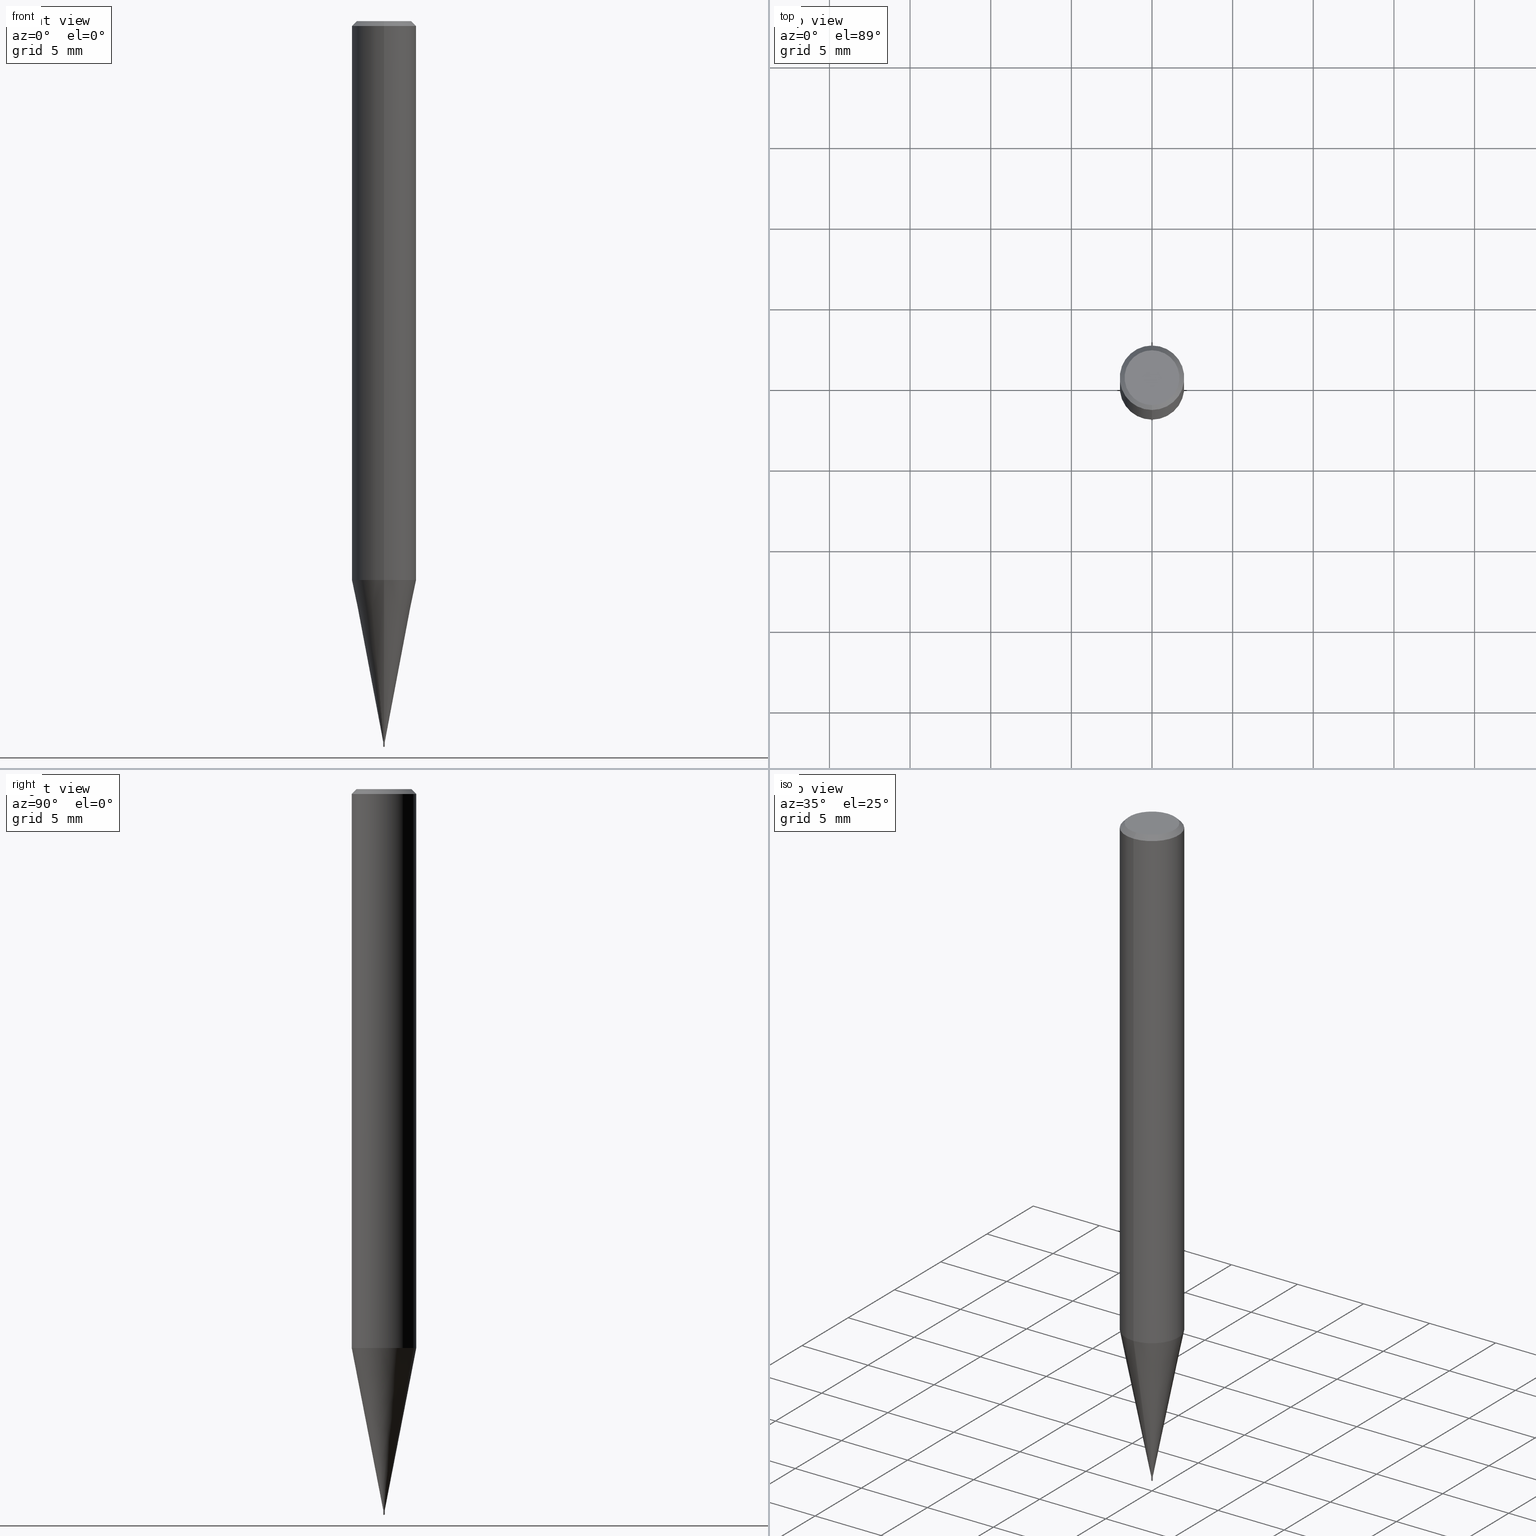
[diagram: canonical four-view strip — front | top / right | iso, engineering-drawing reading convention]
A machine part, canonical four-view strip (front | top / right | iso — engineering-drawing reading convention). The complete STEP part file that produces these views, byte-faithful:
ISO-10303-21;
HEADER;
FILE_DESCRIPTION(('no description'),'unknown implementation level');
FILE_NAME('HSLB2001-003-Huellk.stp','  ',('CIMSOURCE GmbH'),('CADClick - KiM GmbH - www.kimweb.de'),'unknown preprocess','ACIS','unknown authorization');
FILE_SCHEMA(('automotive_design'));
ENDSEC;
DATA;
#1=MECHANICAL_DESIGN_GEOMETRIC_PRESENTATION_REPRESENTATION(' ',(#14,#15,#16,#17,#18,#19,#20,#21,#22,#23,#24,#25,#26,#27,#28,#29,#30,#31,#32,#33,#34,#35,#36,#37,#38,#39,#40,#41,#42,#43,#44,#45,#46,#47,#48,#49,#50,#51,#52,#53,#54,#55,#56,#57,#58,#59,#60,#61,#62,#63,#64,#65,#66,#67,#68,#69,#70,#71,#72,#73,#74),#10);
#2=PRODUCT_DEFINITION_CONTEXT('',#75,'design');
#3=APPLICATION_PROTOCOL_DEFINITION('INTERNATIONAL STANDARD','automotive_design',1994,#75);
#4=PRODUCT_CATEGORY_RELATIONSHIP('NONE','NONE',#76,#77);
#5=SHAPE_DEFINITION_REPRESENTATION(#78,#79);
#6=PRODUCT_DEFINITION_CONTEXT('',#80,'design');
#7=APPLICATION_PROTOCOL_DEFINITION('INTERNATIONAL STANDARD','automotive_design',1994,#80);
#8=PRODUCT_CATEGORY_RELATIONSHIP('NONE','NONE',#81,#82);
#9=SHAPE_DEFINITION_REPRESENTATION(#83,#84);
#10= (GEOMETRIC_REPRESENTATION_CONTEXT(3)GLOBAL_UNCERTAINTY_ASSIGNED_CONTEXT((#87))GLOBAL_UNIT_ASSIGNED_CONTEXT((#89,#90,#91))REPRESENTATION_CONTEXT('NONE','WORKSPACE'));
#14=STYLED_ITEM('',(#93),#94);
#15=STYLED_ITEM('',(#95),#96);
#16=STYLED_ITEM('',(#97),#98);
#17=STYLED_ITEM('',(#99),#100);
#18=STYLED_ITEM('',(#101),#102);
#19=STYLED_ITEM('',(#103),#104);
#20=STYLED_ITEM('',(#105),#106);
#21=STYLED_ITEM('',(#107),#108);
#22=STYLED_ITEM('',(#109),#110);
#23=STYLED_ITEM('',(#111),#112);
#24=STYLED_ITEM('',(#113),#114);
#25=STYLED_ITEM('',(#115),#116);
#26=STYLED_ITEM('',(#117),#118);
#27=STYLED_ITEM('',(#119),#120);
#28=STYLED_ITEM('',(#121),#122);
#29=STYLED_ITEM('',(#123),#124);
#30=STYLED_ITEM('',(#125),#126);
#31=STYLED_ITEM('',(#127),#128);
#32=STYLED_ITEM('',(#129),#130);
#33=STYLED_ITEM('',(#131),#132);
#34=STYLED_ITEM('',(#133),#134);
#35=STYLED_ITEM('',(#135),#136);
#36=STYLED_ITEM('',(#137),#138);
#37=STYLED_ITEM('',(#139),#140);
#38=STYLED_ITEM('',(#141),#142);
#39=STYLED_ITEM('',(#143),#144);
#40=STYLED_ITEM('',(#145),#146);
#41=STYLED_ITEM('',(#147),#148);
#42=STYLED_ITEM('',(#149),#150);
#43=STYLED_ITEM('',(#151),#152);
#44=STYLED_ITEM('',(#153),#154);
#45=STYLED_ITEM('',(#155),#156);
#46=STYLED_ITEM('',(#157),#158);
#47=STYLED_ITEM('',(#159),#160);
#48=STYLED_ITEM('',(#161),#162);
#49=STYLED_ITEM('',(#163),#164);
#50=STYLED_ITEM('',(#165),#166);
#51=STYLED_ITEM('',(#167),#168);
#52=STYLED_ITEM('',(#169),#170);
#53=STYLED_ITEM('',(#171),#172);
#54=STYLED_ITEM('',(#173),#174);
#55=STYLED_ITEM('',(#175),#176);
#56=STYLED_ITEM('',(#177),#178);
#57=STYLED_ITEM('',(#179),#180);
#58=STYLED_ITEM('',(#181),#182);
#59=STYLED_ITEM('',(#183),#184);
#60=STYLED_ITEM('',(#185),#186);
#61=STYLED_ITEM('',(#187),#188);
#62=STYLED_ITEM('',(#189),#190);
#63=STYLED_ITEM('',(#191),#192);
#64=STYLED_ITEM('',(#193),#194);
#65=STYLED_ITEM('',(#195),#196);
#66=STYLED_ITEM('',(#197),#198);
#67=STYLED_ITEM('',(#199),#200);
#68=STYLED_ITEM('',(#201),#202);
#69=STYLED_ITEM('',(#203),#204);
#70=STYLED_ITEM('',(#205),#206);
#71=STYLED_ITEM('',(#207),#208);
#72=STYLED_ITEM('',(#209),#210);
#73=STYLED_ITEM('',(#211),#212);
#74=STYLED_ITEM('',(#213),#214);
#75=APPLICATION_CONTEXT(' ');
#76=PRODUCT_CATEGORY('part','NONE');
#77=PRODUCT_RELATED_PRODUCT_CATEGORY('detail',' ',(#215));
#78=PRODUCT_DEFINITION_SHAPE('NONE','NONE',#216);
#79=ADVANCED_BREP_SHAPE_REPRESENTATION('1',(#166,#217),#10);
#80=APPLICATION_CONTEXT(' ');
#81=PRODUCT_CATEGORY('part','NONE');
#82=PRODUCT_RELATED_PRODUCT_CATEGORY('detail',' ',(#218));
#83=PRODUCT_DEFINITION_SHAPE('NONE','NONE',#219);
#84=ADVANCED_BREP_SHAPE_REPRESENTATION('2',(#162,#220),#10);
#87=UNCERTAINTY_MEASURE_WITH_UNIT(LENGTH_MEASURE(1.0E-006),#89,'','');
#89= (CONVERSION_BASED_UNIT('MILLIMETRE',#223)LENGTH_UNIT()NAMED_UNIT(#226));
#90= (NAMED_UNIT(#228)PLANE_ANGLE_UNIT()SI_UNIT($,.RADIAN.));
#91= (NAMED_UNIT(#228)SOLID_ANGLE_UNIT()SI_UNIT($,.STERADIAN.));
#93=PRESENTATION_STYLE_ASSIGNMENT((#234));
#94=ADVANCED_FACE('',(#235),#236,.T.);
#95=PRESENTATION_STYLE_ASSIGNMENT((#237));
#96=EDGE_CURVE('',#122,#126,#238,.T.);
#97=PRESENTATION_STYLE_ASSIGNMENT((#239));
#98=VERTEX_POINT('',#240);
#99=PRESENTATION_STYLE_ASSIGNMENT((#241));
#100=ADVANCED_FACE('',(#242),#243,.T.);
#101=PRESENTATION_STYLE_ASSIGNMENT((#244));
#102=ADVANCED_FACE('',(#245),#246,.T.);
#103=PRESENTATION_STYLE_ASSIGNMENT((#247));
#104=ADVANCED_FACE('',(#248),#249,.T.);
#105=PRESENTATION_STYLE_ASSIGNMENT((#250));
#106=EDGE_CURVE('',#196,#98,#251,.T.);
#107=PRESENTATION_STYLE_ASSIGNMENT((#252));
#108=EDGE_CURVE('',#146,#156,#253,.T.);
#109=PRESENTATION_STYLE_ASSIGNMENT((#254));
#110=EDGE_CURVE('',#168,#198,#255,.T.);
#111=PRESENTATION_STYLE_ASSIGNMENT((#256));
#112=EDGE_CURVE('',#214,#148,#257,.T.);
#113=PRESENTATION_STYLE_ASSIGNMENT((#258));
#114=EDGE_CURVE('',#124,#128,#259,.T.);
#115=PRESENTATION_STYLE_ASSIGNMENT((#260));
#116=EDGE_CURVE('',#138,#118,#261,.T.);
#117=PRESENTATION_STYLE_ASSIGNMENT((#262));
#118=VERTEX_POINT('',#263);
#119=PRESENTATION_STYLE_ASSIGNMENT((#264));
#120=EDGE_CURVE('',#196,#156,#265,.T.);
#121=PRESENTATION_STYLE_ASSIGNMENT((#266));
#122=VERTEX_POINT('',#267);
#123=PRESENTATION_STYLE_ASSIGNMENT((#268));
#124=VERTEX_POINT('',#269);
#125=PRESENTATION_STYLE_ASSIGNMENT((#270));
#126=VERTEX_POINT('',#271);
#127=PRESENTATION_STYLE_ASSIGNMENT((#272));
#128=VERTEX_POINT('',#273);
#129=PRESENTATION_STYLE_ASSIGNMENT((#274));
#130=EDGE_CURVE('',#126,#122,#275,.T.);
#131=PRESENTATION_STYLE_ASSIGNMENT((#276));
#132=VERTEX_POINT('',#277);
#133=PRESENTATION_STYLE_ASSIGNMENT((#278));
#134=EDGE_CURVE('',#198,#122,#279,.T.);
#135=PRESENTATION_STYLE_ASSIGNMENT((#280));
#136=ADVANCED_FACE('',(#281),#282,.T.);
#137=PRESENTATION_STYLE_ASSIGNMENT((#283));
#138=VERTEX_POINT('',#284);
#139=PRESENTATION_STYLE_ASSIGNMENT((#285));
#140=EDGE_CURVE('',#98,#146,#286,.T.);
#141=PRESENTATION_STYLE_ASSIGNMENT((#287));
#142=ADVANCED_FACE('',(#288),#289,.T.);
#143=PRESENTATION_STYLE_ASSIGNMENT((#290));
#144=EDGE_CURVE('',#118,#138,#291,.T.);
#145=PRESENTATION_STYLE_ASSIGNMENT((#292));
#146=VERTEX_POINT('',#293);
#147=PRESENTATION_STYLE_ASSIGNMENT((#294));
#148=VERTEX_POINT('',#295);
#149=PRESENTATION_STYLE_ASSIGNMENT((#296));
#150=EDGE_CURVE('',#98,#132,#297,.T.);
#151=PRESENTATION_STYLE_ASSIGNMENT((#298));
#152=ADVANCED_FACE('',(#299),#300,.T.);
#153=PRESENTATION_STYLE_ASSIGNMENT((#301));
#154=ADVANCED_FACE('',(#302),#303,.T.);
#155=PRESENTATION_STYLE_ASSIGNMENT((#304));
#156=VERTEX_POINT('',#305);
#157=PRESENTATION_STYLE_ASSIGNMENT((#306));
#158=ADVANCED_FACE('',(#307),#308,.T.);
#159=PRESENTATION_STYLE_ASSIGNMENT((#309));
#160=EDGE_CURVE('',#128,#198,#310,.T.);
#161=PRESENTATION_STYLE_ASSIGNMENT((#311));
#162=MANIFOLD_SOLID_BREP('2',#312);
#163=PRESENTATION_STYLE_ASSIGNMENT((#313));
#164=EDGE_CURVE('',#132,#202,#314,.T.);
#165=PRESENTATION_STYLE_ASSIGNMENT((#315));
#166=MANIFOLD_SOLID_BREP('1',#316);
#167=PRESENTATION_STYLE_ASSIGNMENT((#317));
#168=VERTEX_POINT('',#318);
#169=PRESENTATION_STYLE_ASSIGNMENT((#319));
#170=EDGE_CURVE('',#118,#138,#320,.T.);
#171=PRESENTATION_STYLE_ASSIGNMENT((#321));
#172=ADVANCED_FACE('',(#322),#323,.T.);
#173=PRESENTATION_STYLE_ASSIGNMENT((#324));
#174=ADVANCED_FACE('',(#325,#326),#327,.T.);
#175=PRESENTATION_STYLE_ASSIGNMENT((#328));
#176=EDGE_CURVE('',#128,#124,#329,.T.);
#177=PRESENTATION_STYLE_ASSIGNMENT((#330));
#178=EDGE_CURVE('',#156,#196,#331,.T.);
#179=PRESENTATION_STYLE_ASSIGNMENT((#332));
#180=ADVANCED_FACE('',(#333),#334,.T.);
#181=PRESENTATION_STYLE_ASSIGNMENT((#335));
#182=EDGE_CURVE('',#168,#124,#336,.T.);
#183=PRESENTATION_STYLE_ASSIGNMENT((#337));
#184=ADVANCED_FACE('',(#338),#339,.T.);
#185=PRESENTATION_STYLE_ASSIGNMENT((#340));
#186=EDGE_CURVE('',#202,#132,#341,.T.);
#187=PRESENTATION_STYLE_ASSIGNMENT((#342));
#188=EDGE_CURVE('',#198,#168,#343,.T.);
#189=PRESENTATION_STYLE_ASSIGNMENT((#344));
#190=EDGE_CURVE('',#202,#146,#345,.T.);
#191=PRESENTATION_STYLE_ASSIGNMENT((#346));
#192=ADVANCED_FACE('',(#347),#348,.T.);
#193=PRESENTATION_STYLE_ASSIGNMENT((#349));
#194=EDGE_CURVE('',#146,#98,#350,.T.);
#195=PRESENTATION_STYLE_ASSIGNMENT((#351));
#196=VERTEX_POINT('',#352);
#197=PRESENTATION_STYLE_ASSIGNMENT((#353));
#198=VERTEX_POINT('',#354);
#199=PRESENTATION_STYLE_ASSIGNMENT((#355));
#200=EDGE_CURVE('',#118,#148,#356,.T.);
#201=PRESENTATION_STYLE_ASSIGNMENT((#357));
#202=VERTEX_POINT('',#358);
#203=PRESENTATION_STYLE_ASSIGNMENT((#359));
#204=ADVANCED_FACE('',(#360),#361,.T.);
#205=PRESENTATION_STYLE_ASSIGNMENT((#362));
#206=EDGE_CURVE('',#148,#214,#363,.T.);
#207=PRESENTATION_STYLE_ASSIGNMENT((#364));
#208=EDGE_CURVE('',#126,#168,#365,.T.);
#209=PRESENTATION_STYLE_ASSIGNMENT((#366));
#210=EDGE_CURVE('',#214,#138,#367,.T.);
#211=PRESENTATION_STYLE_ASSIGNMENT((#368));
#212=ADVANCED_FACE('',(#369),#370,.T.);
#213=PRESENTATION_STYLE_ASSIGNMENT((#371));
#214=VERTEX_POINT('',#372);
#215=PRODUCT('1','1','PART-1-DESC',(#373));
#216=PRODUCT_DEFINITION('NONE','NONE',#374,#2);
#217=AXIS2_PLACEMENT_3D('',#375,#376,#377);
#218=PRODUCT('2','2','PART-2-DESC',(#378));
#219=PRODUCT_DEFINITION('NONE','NONE',#379,#6);
#220=AXIS2_PLACEMENT_3D('',#380,#381,#382);
#223=LENGTH_MEASURE_WITH_UNIT(LENGTH_MEASURE(1.0),#383);
#226=DIMENSIONAL_EXPONENTS(1.0,0.0,0.0,0.0,0.0,0.0,0.0);
#228=DIMENSIONAL_EXPONENTS(0.0,0.0,0.0,0.0,0.0,0.0,0.0);
#234=SURFACE_STYLE_USAGE(.BOTH.,#384);
#235=FACE_OUTER_BOUND('',#385,.T.);
#236=CONICAL_SURFACE('',#386,0.04995,0.00333332098773672);
#237=CURVE_STYLE('',#387,POSITIVE_LENGTH_MEASURE(1.0E-006),#388);
#238=CIRCLE('',#389,1.7);
#239=POINT_STYLE(' ',#390,POSITIVE_LENGTH_MEASURE(1.0E-006),#391);
#240=CARTESIAN_POINT('',(5.81075714888718E-018,-0.04745,-44.7));
#241=SURFACE_STYLE_USAGE(.BOTH.,#392);
#242=FACE_OUTER_BOUND('',#393,.T.);
#243=CONICAL_SURFACE('',#394,1.0237,0.191981401646118);
#244=SURFACE_STYLE_USAGE(.BOTH.,#395);
#245=FACE_OUTER_BOUND('',#396,.T.);
#246=CYLINDRICAL_SURFACE('',#397,2.0);
#247=SURFACE_STYLE_USAGE(.BOTH.,#398);
#248=FACE_OUTER_BOUND('',#399,.T.);
#249=CYLINDRICAL_SURFACE('',#400,0.04745);
#250=CURVE_STYLE('',#401,POSITIVE_LENGTH_MEASURE(1.0E-006),#402);
#251=LINE('',#403,#404);
#252=CURVE_STYLE('',#405,POSITIVE_LENGTH_MEASURE(1.0E-006),#406);
#253=LINE('',#407,#408);
#254=CURVE_STYLE('',#409,POSITIVE_LENGTH_MEASURE(1.0E-006),#410);
#255=CIRCLE('',#411,2.0);
#256=CURVE_STYLE('',#412,POSITIVE_LENGTH_MEASURE(1.0E-006),#413);
#257=CIRCLE('',#414,0.0499);
#258=CURVE_STYLE('',#415,POSITIVE_LENGTH_MEASURE(1.0E-006),#416);
#259=CIRCLE('',#417,2.0);
#260=CURVE_STYLE('',#418,POSITIVE_LENGTH_MEASURE(1.0E-006),#419);
#261=CIRCLE('',#420,0.05);
#262=POINT_STYLE(' ',#421,POSITIVE_LENGTH_MEASURE(1.0E-006),#422);
#263=CARTESIAN_POINT('',(6.12303176911189E-018,-0.05,-44.95));
#264=CURVE_STYLE('',#423,POSITIVE_LENGTH_MEASURE(1.0E-006),#424);
#265=CIRCLE('',#425,0.04745);
#266=POINT_STYLE(' ',#426,POSITIVE_LENGTH_MEASURE(1.0E-006),#427);
#267=CARTESIAN_POINT('',(2.08183080149804E-016,-1.7,0.0));
#268=POINT_STYLE(' ',#428,POSITIVE_LENGTH_MEASURE(1.0E-006),#429);
#269=CARTESIAN_POINT('',(0.0,2.0,-34.655));
#270=POINT_STYLE(' ',#430,POSITIVE_LENGTH_MEASURE(1.0E-006),#431);
#271=CARTESIAN_POINT('',(0.0,1.7,0.0));
#272=POINT_STYLE(' ',#432,POSITIVE_LENGTH_MEASURE(1.0E-006),#433);
#273=CARTESIAN_POINT('',(2.44921270764475E-016,-2.0,-34.655));
#274=CURVE_STYLE('',#434,POSITIVE_LENGTH_MEASURE(1.0E-006),#435);
#275=CIRCLE('',#436,1.7);
#276=POINT_STYLE(' ',#437,POSITIVE_LENGTH_MEASURE(1.0E-006),#438);
#277=CARTESIAN_POINT('',(2.44915147732706E-016,-1.99995,-34.655));
#278=CURVE_STYLE('',#439,POSITIVE_LENGTH_MEASURE(1.0E-006),#440);
#279=LINE('',#441,#442);
#280=SURFACE_STYLE_USAGE(.BOTH.,#443);
#281=FACE_OUTER_BOUND('',#444,.T.);
#282=PLANE('',#445);
#283=POINT_STYLE(' ',#446,POSITIVE_LENGTH_MEASURE(1.0E-006),#447);
#284=CARTESIAN_POINT('',(0.0,0.05,-44.95));
#285=CURVE_STYLE('',#448,POSITIVE_LENGTH_MEASURE(1.0E-006),#449);
#286=CIRCLE('',#450,0.04745);
#287=SURFACE_STYLE_USAGE(.BOTH.,#451);
#288=FACE_OUTER_BOUND('',#452,.T.);
#289=PLANE('',#453);
#290=CURVE_STYLE('',#454,POSITIVE_LENGTH_MEASURE(1.0E-006),#455);
#291=CIRCLE('',#456,0.05);
#292=POINT_STYLE(' ',#457,POSITIVE_LENGTH_MEASURE(1.0E-006),#458);
#293=CARTESIAN_POINT('',(0.0,0.04745,-44.7));
#294=POINT_STYLE(' ',#459,POSITIVE_LENGTH_MEASURE(1.0E-006),#460);
#295=CARTESIAN_POINT('',(6.11078570557366E-018,-0.0499,-44.92));
#296=CURVE_STYLE('',#461,POSITIVE_LENGTH_MEASURE(1.0E-006),#462);
#297=LINE('',#463,#464);
#298=SURFACE_STYLE_USAGE(.BOTH.,#465);
#299=FACE_OUTER_BOUND('',#466,.T.);
#300=SPHERICAL_SURFACE('',#467,0.0500000000000001);
#301=SURFACE_STYLE_USAGE(.BOTH.,#468);
#302=FACE_OUTER_BOUND('',#469,.T.);
#303=CONICAL_SURFACE('',#470,0.04995,0.00333332098773672);
#304=POINT_STYLE(' ',#471,POSITIVE_LENGTH_MEASURE(1.0E-006),#472);
#305=CARTESIAN_POINT('',(0.0,0.04745,-44.92));
#306=SURFACE_STYLE_USAGE(.BOTH.,#473);
#307=FACE_OUTER_BOUND('',#474,.T.);
#308=CYLINDRICAL_SURFACE('',#475,2.0);
#309=CURVE_STYLE('',#476,POSITIVE_LENGTH_MEASURE(1.0E-006),#477);
#310=LINE('',#478,#479);
#311=SURFACE_STYLE_USAGE(.BOTH.,#480);
#312=CLOSED_SHELL('',(#152,#94,#136,#154,#180));
#313=CURVE_STYLE('',#481,POSITIVE_LENGTH_MEASURE(1.0E-006),#482);
#314=CIRCLE('',#483,1.99995);
#315=SURFACE_STYLE_USAGE(.BOTH.,#484);
#316=CLOSED_SHELL('',(#192,#204,#158,#184,#174,#212,#172,#102,#100,#104,#142));
#317=POINT_STYLE(' ',#485,POSITIVE_LENGTH_MEASURE(1.0E-006),#486);
#318=CARTESIAN_POINT('',(0.0,2.0,-0.299999999999997));
#319=CURVE_STYLE('',#487,POSITIVE_LENGTH_MEASURE(1.0E-006),#488);
#320=CIRCLE('',#489,0.0500000000000001);
#321=SURFACE_STYLE_USAGE(.BOTH.,#490);
#322=FACE_OUTER_BOUND('',#491,.T.);
#323=CONICAL_SURFACE('',#492,1.85,0.785398163397453);
#324=SURFACE_STYLE_USAGE(.BOTH.,#493);
#325=FACE_OUTER_BOUND('',#494,.T.);
#326=FACE_BOUND('',#495,.T.);
#327=PLANE('',#496);
#328=CURVE_STYLE('',#497,POSITIVE_LENGTH_MEASURE(1.0E-006),#498);
#329=CIRCLE('',#499,2.0);
#330=CURVE_STYLE('',#500,POSITIVE_LENGTH_MEASURE(1.0E-006),#501);
#331=CIRCLE('',#502,0.04745);
#332=SURFACE_STYLE_USAGE(.BOTH.,#503);
#333=FACE_OUTER_BOUND('',#504,.T.);
#334=SPHERICAL_SURFACE('',#505,0.0500000000000001);
#335=CURVE_STYLE('',#506,POSITIVE_LENGTH_MEASURE(1.0E-006),#507);
#336=LINE('',#508,#509);
#337=SURFACE_STYLE_USAGE(.BOTH.,#510);
#338=FACE_OUTER_BOUND('',#511,.T.);
#339=CONICAL_SURFACE('',#512,1.85,0.785398163397453);
#340=CURVE_STYLE('',#513,POSITIVE_LENGTH_MEASURE(1.0E-006),#514);
#341=CIRCLE('',#515,1.99995);
#342=CURVE_STYLE('',#516,POSITIVE_LENGTH_MEASURE(1.0E-006),#517);
#343=CIRCLE('',#518,2.0);
#344=CURVE_STYLE('',#519,POSITIVE_LENGTH_MEASURE(1.0E-006),#520);
#345=LINE('',#521,#522);
#346=SURFACE_STYLE_USAGE(.BOTH.,#523);
#347=FACE_OUTER_BOUND('',#524,.T.);
#348=CYLINDRICAL_SURFACE('',#525,0.04745);
#349=CURVE_STYLE('',#526,POSITIVE_LENGTH_MEASURE(1.0E-006),#527);
#350=CIRCLE('',#528,0.04745);
#351=POINT_STYLE(' ',#529,POSITIVE_LENGTH_MEASURE(1.0E-006),#530);
#352=CARTESIAN_POINT('',(5.81075714888718E-018,-0.04745,-44.92));
#353=POINT_STYLE(' ',#531,POSITIVE_LENGTH_MEASURE(1.0E-006),#532);
#354=CARTESIAN_POINT('',(2.44921270764475E-016,-2.0,-0.299999999999997));
#355=CURVE_STYLE('',#533,POSITIVE_LENGTH_MEASURE(1.0E-006),#534);
#356=LINE('',#535,#536);
#357=POINT_STYLE(' ',#537,POSITIVE_LENGTH_MEASURE(1.0E-006),#538);
#358=CARTESIAN_POINT('',(0.0,1.99995,-34.655));
#359=SURFACE_STYLE_USAGE(.BOTH.,#539);
#360=FACE_OUTER_BOUND('',#540,.T.);
#361=CONICAL_SURFACE('',#541,1.0237,0.191981401646118);
#362=CURVE_STYLE('',#542,POSITIVE_LENGTH_MEASURE(1.0E-006),#543);
#363=CIRCLE('',#544,0.0499);
#364=CURVE_STYLE('',#545,POSITIVE_LENGTH_MEASURE(1.0E-006),#546);
#365=LINE('',#547,#548);
#366=CURVE_STYLE('',#549,POSITIVE_LENGTH_MEASURE(1.0E-006),#550);
#367=LINE('',#551,#552);
#368=SURFACE_STYLE_USAGE(.BOTH.,#553);
#369=FACE_OUTER_BOUND('',#554,.T.);
#370=PLANE('',#555);
#371=POINT_STYLE(' ',#556,POSITIVE_LENGTH_MEASURE(1.0E-006),#557);
#372=CARTESIAN_POINT('',(0.0,0.0499,-44.92));
#373=PRODUCT_CONTEXT('',#75,'mechanical');
#374=PRODUCT_DEFINITION_FORMATION_WITH_SPECIFIED_SOURCE(' ','NONE',#215,.NOT_KNOWN.);
#375=CARTESIAN_POINT('',(0.0,0.0,0.0));
#376=DIRECTION('',(0.0,0.0,1.0));
#377=DIRECTION('',(1.0,0.0,0.0));
#378=PRODUCT_CONTEXT('',#80,'mechanical');
#379=PRODUCT_DEFINITION_FORMATION_WITH_SPECIFIED_SOURCE(' ','NONE',#218,.NOT_KNOWN.);
#380=CARTESIAN_POINT('',(0.0,0.0,0.0));
#381=DIRECTION('',(0.0,0.0,1.0));
#382=DIRECTION('',(1.0,0.0,0.0));
#383= (NAMED_UNIT(#226)LENGTH_UNIT()SI_UNIT(.MILLI.,.METRE.));
#384=SURFACE_SIDE_STYLE('',(#559));
#385=EDGE_LOOP('',(#560,#561,#562,#563));
#386=AXIS2_PLACEMENT_3D('',#564,#565,#566);
#387=DRAUGHTING_PRE_DEFINED_CURVE_FONT('continuous');
#388=COLOUR_RGB('',0.498039215803146,0.498039215803146,0.498039215803146);
#389=AXIS2_PLACEMENT_3D('',#567,#568,#569);
#390=PRE_DEFINED_MARKER('');
#391=COLOUR_RGB('',0.498039215803146,0.498039215803146,0.498039215803146);
#392=SURFACE_SIDE_STYLE('',(#570));
#393=EDGE_LOOP('',(#571,#572,#573,#574));
#394=AXIS2_PLACEMENT_3D('',#575,#576,#577);
#395=SURFACE_SIDE_STYLE('',(#578));
#396=EDGE_LOOP('',(#579,#580,#581,#582));
#397=AXIS2_PLACEMENT_3D('',#583,#584,#585);
#398=SURFACE_SIDE_STYLE('',(#586));
#399=EDGE_LOOP('',(#587,#588,#589,#590));
#400=AXIS2_PLACEMENT_3D('',#591,#592,#593);
#401=DRAUGHTING_PRE_DEFINED_CURVE_FONT('continuous');
#402=COLOUR_RGB('',0.498039215803146,0.498039215803146,0.498039215803146);
#403=CARTESIAN_POINT('',(5.81075714888718E-018,-0.04745,-44.81));
#404=VECTOR('',#594,1.0);
#405=DRAUGHTING_PRE_DEFINED_CURVE_FONT('continuous');
#406=COLOUR_RGB('',0.498039215803146,0.498039215803146,0.498039215803146);
#407=CARTESIAN_POINT('',(-5.81075714888718E-018,0.04745,-44.81));
#408=VECTOR('',#595,1.0);
#409=DRAUGHTING_PRE_DEFINED_CURVE_FONT('continuous');
#410=COLOUR_RGB('',0.498039215803146,0.498039215803146,0.498039215803146);
#411=AXIS2_PLACEMENT_3D('',#596,#597,#598);
#412=DRAUGHTING_PRE_DEFINED_CURVE_FONT('continuous');
#413=COLOUR_RGB('',0.800000011920929,0.800000011920929,0.800000011920929);
#414=AXIS2_PLACEMENT_3D('',#599,#600,#601);
#415=DRAUGHTING_PRE_DEFINED_CURVE_FONT('continuous');
#416=COLOUR_RGB('',0.498039215803146,0.498039215803146,0.498039215803146);
#417=AXIS2_PLACEMENT_3D('',#602,#603,#604);
#418=DRAUGHTING_PRE_DEFINED_CURVE_FONT('continuous');
#419=COLOUR_RGB('',0.800000011920929,0.800000011920929,0.800000011920929);
#420=AXIS2_PLACEMENT_3D('',#605,#606,#607);
#421=PRE_DEFINED_MARKER('');
#422=COLOUR_RGB('',0.800000011920929,0.800000011920929,0.800000011920929);
#423=DRAUGHTING_PRE_DEFINED_CURVE_FONT('continuous');
#424=COLOUR_RGB('',0.498039215803146,0.498039215803146,0.498039215803146);
#425=AXIS2_PLACEMENT_3D('',#608,#609,#610);
#426=PRE_DEFINED_MARKER('');
#427=COLOUR_RGB('',0.498039215803146,0.498039215803146,0.498039215803146);
#428=PRE_DEFINED_MARKER('');
#429=COLOUR_RGB('',0.498039215803146,0.498039215803146,0.498039215803146);
#430=PRE_DEFINED_MARKER('');
#431=COLOUR_RGB('',0.498039215803146,0.498039215803146,0.498039215803146);
#432=PRE_DEFINED_MARKER('');
#433=COLOUR_RGB('',0.498039215803146,0.498039215803146,0.498039215803146);
#434=DRAUGHTING_PRE_DEFINED_CURVE_FONT('continuous');
#435=COLOUR_RGB('',0.498039215803146,0.498039215803146,0.498039215803146);
#436=AXIS2_PLACEMENT_3D('',#611,#612,#613);
#437=PRE_DEFINED_MARKER('');
#438=COLOUR_RGB('',0.498039215803146,0.498039215803146,0.498039215803146);
#439=DRAUGHTING_PRE_DEFINED_CURVE_FONT('continuous');
#440=COLOUR_RGB('',0.498039215803146,0.498039215803146,0.498039215803146);
#441=CARTESIAN_POINT('',(2.2655217545714E-016,-1.85,-0.149999999999999));
#442=VECTOR('',#614,1.0);
#443=SURFACE_SIDE_STYLE('',(#615));
#444=EDGE_LOOP('',(#616,#617));
#445=AXIS2_PLACEMENT_3D('',#618,#619,#620);
#446=PRE_DEFINED_MARKER('');
#447=COLOUR_RGB('',0.800000011920929,0.800000011920929,0.800000011920929);
#448=DRAUGHTING_PRE_DEFINED_CURVE_FONT('continuous');
#449=COLOUR_RGB('',0.498039215803146,0.498039215803146,0.498039215803146);
#450=AXIS2_PLACEMENT_3D('',#621,#622,#623);
#451=SURFACE_SIDE_STYLE('',(#624));
#452=EDGE_LOOP('',(#625,#626));
#453=AXIS2_PLACEMENT_3D('',#627,#628,#629);
#454=DRAUGHTING_PRE_DEFINED_CURVE_FONT('continuous');
#455=COLOUR_RGB('',0.800000011920929,0.800000011920929,0.800000011920929);
#456=AXIS2_PLACEMENT_3D('',#630,#631,#632);
#457=PRE_DEFINED_MARKER('');
#458=COLOUR_RGB('',0.498039215803146,0.498039215803146,0.498039215803146);
#459=PRE_DEFINED_MARKER('');
#460=COLOUR_RGB('',0.800000011920929,0.800000011920929,0.800000011920929);
#461=DRAUGHTING_PRE_DEFINED_CURVE_FONT('continuous');
#462=COLOUR_RGB('',0.498039215803146,0.498039215803146,0.498039215803146);
#463=CARTESIAN_POINT('',(1.25362952440797E-016,-1.0237,-39.6775));
#464=VECTOR('',#633,1.0);
#465=SURFACE_SIDE_STYLE('',(#634));
#466=EDGE_LOOP('',(#635,#636));
#467=AXIS2_PLACEMENT_3D('',#637,#638,#639);
#468=SURFACE_SIDE_STYLE('',(#640));
#469=EDGE_LOOP('',(#641,#642,#643,#644));
#470=AXIS2_PLACEMENT_3D('',#645,#646,#647);
#471=PRE_DEFINED_MARKER('');
#472=COLOUR_RGB('',0.498039215803146,0.498039215803146,0.498039215803146);
#473=SURFACE_SIDE_STYLE('',(#648));
#474=EDGE_LOOP('',(#649,#650,#651,#652));
#475=AXIS2_PLACEMENT_3D('',#653,#654,#655);
#476=DRAUGHTING_PRE_DEFINED_CURVE_FONT('continuous');
#477=COLOUR_RGB('',0.498039215803146,0.498039215803146,0.498039215803146);
#478=CARTESIAN_POINT('',(2.44921270764475E-016,-2.0,-17.4775));
#479=VECTOR('',#656,1.0);
#480=SURFACE_SIDE_STYLE('',(#657));
#481=DRAUGHTING_PRE_DEFINED_CURVE_FONT('continuous');
#482=COLOUR_RGB('',0.498039215803146,0.498039215803146,0.498039215803146);
#483=AXIS2_PLACEMENT_3D('',#658,#659,#660);
#484=SURFACE_SIDE_STYLE('',(#661));
#485=PRE_DEFINED_MARKER('');
#486=COLOUR_RGB('',0.498039215803146,0.498039215803146,0.498039215803146);
#487=DRAUGHTING_PRE_DEFINED_CURVE_FONT('continuous');
#488=COLOUR_RGB('',0.800000011920929,0.800000011920929,0.800000011920929);
#489=AXIS2_PLACEMENT_3D('',#662,#663,#664);
#490=SURFACE_SIDE_STYLE('',(#665));
#491=EDGE_LOOP('',(#666,#667,#668,#669));
#492=AXIS2_PLACEMENT_3D('',#670,#671,#672);
#493=SURFACE_SIDE_STYLE('',(#673));
#494=EDGE_LOOP('',(#674,#675));
#495=EDGE_LOOP('',(#676,#677));
#496=AXIS2_PLACEMENT_3D('',#678,#679,#680);
#497=DRAUGHTING_PRE_DEFINED_CURVE_FONT('continuous');
#498=COLOUR_RGB('',0.498039215803146,0.498039215803146,0.498039215803146);
#499=AXIS2_PLACEMENT_3D('',#681,#682,#683);
#500=DRAUGHTING_PRE_DEFINED_CURVE_FONT('continuous');
#501=COLOUR_RGB('',0.498039215803146,0.498039215803146,0.498039215803146);
#502=AXIS2_PLACEMENT_3D('',#684,#685,#686);
#503=SURFACE_SIDE_STYLE('',(#687));
#504=EDGE_LOOP('',(#688,#689));
#505=AXIS2_PLACEMENT_3D('',#690,#691,#692);
#506=DRAUGHTING_PRE_DEFINED_CURVE_FONT('continuous');
#507=COLOUR_RGB('',0.498039215803146,0.498039215803146,0.498039215803146);
#508=CARTESIAN_POINT('',(-2.44921270764475E-016,2.0,-17.4775));
#509=VECTOR('',#693,1.0);
#510=SURFACE_SIDE_STYLE('',(#694));
#511=EDGE_LOOP('',(#695,#696,#697,#698));
#512=AXIS2_PLACEMENT_3D('',#699,#700,#701);
#513=DRAUGHTING_PRE_DEFINED_CURVE_FONT('continuous');
#514=COLOUR_RGB('',0.498039215803146,0.498039215803146,0.498039215803146);
#515=AXIS2_PLACEMENT_3D('',#702,#703,#704);
#516=DRAUGHTING_PRE_DEFINED_CURVE_FONT('continuous');
#517=COLOUR_RGB('',0.498039215803146,0.498039215803146,0.498039215803146);
#518=AXIS2_PLACEMENT_3D('',#705,#706,#707);
#519=DRAUGHTING_PRE_DEFINED_CURVE_FONT('continuous');
#520=COLOUR_RGB('',0.498039215803146,0.498039215803146,0.498039215803146);
#521=CARTESIAN_POINT('',(-1.25362952440797E-016,1.0237,-39.6775));
#522=VECTOR('',#708,1.0);
#523=SURFACE_SIDE_STYLE('',(#709));
#524=EDGE_LOOP('',(#710,#711,#712,#713));
#525=AXIS2_PLACEMENT_3D('',#714,#715,#716);
#526=DRAUGHTING_PRE_DEFINED_CURVE_FONT('continuous');
#527=COLOUR_RGB('',0.498039215803146,0.498039215803146,0.498039215803146);
#528=AXIS2_PLACEMENT_3D('',#717,#718,#719);
#529=PRE_DEFINED_MARKER('');
#530=COLOUR_RGB('',0.498039215803146,0.498039215803146,0.498039215803146);
#531=PRE_DEFINED_MARKER('');
#532=COLOUR_RGB('',0.498039215803146,0.498039215803146,0.498039215803146);
#533=DRAUGHTING_PRE_DEFINED_CURVE_FONT('continuous');
#534=COLOUR_RGB('',0.800000011920929,0.800000011920929,0.800000011920929);
#535=CARTESIAN_POINT('',(6.11690873734277E-018,-0.04995,-44.935));
#536=VECTOR('',#720,1.0);
#537=PRE_DEFINED_MARKER('');
#538=COLOUR_RGB('',0.498039215803146,0.498039215803146,0.498039215803146);
#539=SURFACE_SIDE_STYLE('',(#721));
#540=EDGE_LOOP('',(#722,#723,#724,#725));
#541=AXIS2_PLACEMENT_3D('',#726,#727,#728);
#542=DRAUGHTING_PRE_DEFINED_CURVE_FONT('continuous');
#543=COLOUR_RGB('',0.800000011920929,0.800000011920929,0.800000011920929);
#544=AXIS2_PLACEMENT_3D('',#729,#730,#731);
#545=DRAUGHTING_PRE_DEFINED_CURVE_FONT('continuous');
#546=COLOUR_RGB('',0.498039215803146,0.498039215803146,0.498039215803146);
#547=CARTESIAN_POINT('',(-2.2655217545714E-016,1.85,-0.149999999999999));
#548=VECTOR('',#732,1.0);
#549=DRAUGHTING_PRE_DEFINED_CURVE_FONT('continuous');
#550=COLOUR_RGB('',0.800000011920929,0.800000011920929,0.800000011920929);
#551=CARTESIAN_POINT('',(-6.11690873734278E-018,0.04995,-44.935));
#552=VECTOR('',#733,1.0);
#553=SURFACE_SIDE_STYLE('',(#734));
#554=EDGE_LOOP('',(#735,#736));
#555=AXIS2_PLACEMENT_3D('',#737,#738,#739);
#556=PRE_DEFINED_MARKER('');
#557=COLOUR_RGB('',0.800000011920929,0.800000011920929,0.800000011920929);
#559=SURFACE_STYLE_FILL_AREA(#740);
#560=ORIENTED_EDGE('',*,*,#210,.F.);
#561=ORIENTED_EDGE('',*,*,#112,.T.);
#562=ORIENTED_EDGE('',*,*,#200,.F.);
#563=ORIENTED_EDGE('',*,*,#116,.F.);
#564=CARTESIAN_POINT('',(0.0,0.0,-44.935));
#565=DIRECTION('',(0.0,-0.0,-1.0));
#566=DIRECTION('',(0.0,1.0,0.0));
#567=CARTESIAN_POINT('',(0.0,0.0,0.0));
#568=DIRECTION('',(0.0,0.0,-1.0));
#569=DIRECTION('',(0.0,1.0,0.0));
#570=SURFACE_STYLE_FILL_AREA(#741);
#571=ORIENTED_EDGE('',*,*,#190,.T.);
#572=ORIENTED_EDGE('',*,*,#140,.F.);
#573=ORIENTED_EDGE('',*,*,#150,.T.);
#574=ORIENTED_EDGE('',*,*,#164,.T.);
#575=CARTESIAN_POINT('',(0.0,0.0,-39.6775));
#576=DIRECTION('',(-0.0,-0.0,1.0));
#577=DIRECTION('',(0.0,1.0,0.0));
#578=SURFACE_STYLE_FILL_AREA(#742);
#579=ORIENTED_EDGE('',*,*,#182,.T.);
#580=ORIENTED_EDGE('',*,*,#176,.F.);
#581=ORIENTED_EDGE('',*,*,#160,.T.);
#582=ORIENTED_EDGE('',*,*,#188,.T.);
#583=CARTESIAN_POINT('',(0.0,0.0,-17.4775));
#584=DIRECTION('',(-0.0,-0.0,1.0));
#585=DIRECTION('',(0.0,1.0,0.0));
#586=SURFACE_STYLE_FILL_AREA(#743);
#587=ORIENTED_EDGE('',*,*,#108,.T.);
#588=ORIENTED_EDGE('',*,*,#120,.F.);
#589=ORIENTED_EDGE('',*,*,#106,.T.);
#590=ORIENTED_EDGE('',*,*,#140,.T.);
#591=CARTESIAN_POINT('',(0.0,0.0,-44.81));
#592=DIRECTION('',(-0.0,-0.0,1.0));
#593=DIRECTION('',(0.0,1.0,0.0));
#594=DIRECTION('',(-0.0,-0.0,1.0));
#595=DIRECTION('',(0.0,0.0,-1.0));
#596=CARTESIAN_POINT('',(0.0,0.0,-0.299999999999997));
#597=DIRECTION('',(0.0,0.0,-1.0));
#598=DIRECTION('',(0.0,1.0,0.0));
#599=CARTESIAN_POINT('',(0.0,0.0,-44.92));
#600=DIRECTION('',(0.0,0.0,-1.0));
#601=DIRECTION('',(0.0,1.0,0.0));
#602=CARTESIAN_POINT('',(0.0,0.0,-34.655));
#603=DIRECTION('',(0.0,0.0,-1.0));
#604=DIRECTION('',(0.0,1.0,0.0));
#605=CARTESIAN_POINT('',(0.0,0.0,-44.95));
#606=DIRECTION('',(0.0,0.0,-1.0));
#607=DIRECTION('',(0.0,1.0,0.0));
#608=CARTESIAN_POINT('',(0.0,0.0,-44.92));
#609=DIRECTION('',(0.0,0.0,-1.0));
#610=DIRECTION('',(0.0,1.0,0.0));
#611=CARTESIAN_POINT('',(0.0,0.0,0.0));
#612=DIRECTION('',(0.0,0.0,-1.0));
#613=DIRECTION('',(0.0,1.0,0.0));
#614=DIRECTION('',(-8.6592745707194E-017,0.707106781186551,0.707106781186544));
#615=SURFACE_STYLE_FILL_AREA(#744);
#616=ORIENTED_EDGE('',*,*,#112,.F.);
#617=ORIENTED_EDGE('',*,*,#206,.F.);
#618=CARTESIAN_POINT('',(0.0,0.02495,-44.92));
#619=DIRECTION('',(-0.0,0.0,1.0));
#620=DIRECTION('',(0.0,-1.0,0.0));
#621=CARTESIAN_POINT('',(0.0,0.0,-44.7));
#622=DIRECTION('',(0.0,0.0,-1.0));
#623=DIRECTION('',(0.0,1.0,0.0));
#624=SURFACE_STYLE_FILL_AREA(#745);
#625=ORIENTED_EDGE('',*,*,#178,.T.);
#626=ORIENTED_EDGE('',*,*,#120,.T.);
#627=CARTESIAN_POINT('',(0.0,0.023725,-44.92));
#628=DIRECTION('',(0.0,0.0,-1.0));
#629=DIRECTION('',(0.0,1.0,0.0));
#630=CARTESIAN_POINT('',(0.0,0.0,-44.95));
#631=DIRECTION('',(0.0,0.0,-1.0));
#632=DIRECTION('',(0.0,1.0,0.0));
#633=DIRECTION('',(2.33660118667044E-017,-0.190804267785904,0.98162810238638));
#634=SURFACE_STYLE_FILL_AREA(#746);
#635=ORIENTED_EDGE('',*,*,#170,.F.);
#636=ORIENTED_EDGE('',*,*,#144,.T.);
#637=CARTESIAN_POINT('',(0.0,0.0,-44.95));
#638=DIRECTION('',(0.0,1.0,0.0));
#639=DIRECTION('',(0.0,0.0,-1.0));
#640=SURFACE_STYLE_FILL_AREA(#747);
#641=ORIENTED_EDGE('',*,*,#210,.T.);
#642=ORIENTED_EDGE('',*,*,#144,.F.);
#643=ORIENTED_EDGE('',*,*,#200,.T.);
#644=ORIENTED_EDGE('',*,*,#206,.T.);
#645=CARTESIAN_POINT('',(0.0,0.0,-44.935));
#646=DIRECTION('',(0.0,-0.0,-1.0));
#647=DIRECTION('',(0.0,1.0,0.0));
#648=SURFACE_STYLE_FILL_AREA(#748);
#649=ORIENTED_EDGE('',*,*,#182,.F.);
#650=ORIENTED_EDGE('',*,*,#110,.T.);
#651=ORIENTED_EDGE('',*,*,#160,.F.);
#652=ORIENTED_EDGE('',*,*,#114,.F.);
#653=CARTESIAN_POINT('',(0.0,0.0,-17.4775));
#654=DIRECTION('',(-0.0,-0.0,1.0));
#655=DIRECTION('',(0.0,1.0,0.0));
#656=DIRECTION('',(-0.0,-0.0,1.0));
#657=SURFACE_STYLE_FILL_AREA(#749);
#658=CARTESIAN_POINT('',(0.0,0.0,-34.655));
#659=DIRECTION('',(0.0,0.0,-1.0));
#660=DIRECTION('',(0.0,1.0,0.0));
#661=SURFACE_STYLE_FILL_AREA(#750);
#662=CARTESIAN_POINT('',(0.0,0.0,-44.95));
#663=DIRECTION('',(1.0,0.0,1.22460635382245E-016));
#664=DIRECTION('',(-1.22460635382245E-016,0.0,1.0));
#665=SURFACE_STYLE_FILL_AREA(#751);
#666=ORIENTED_EDGE('',*,*,#208,.T.);
#667=ORIENTED_EDGE('',*,*,#188,.F.);
#668=ORIENTED_EDGE('',*,*,#134,.T.);
#669=ORIENTED_EDGE('',*,*,#96,.T.);
#670=CARTESIAN_POINT('',(0.0,0.0,-0.149999999999999));
#671=DIRECTION('',(0.0,-0.0,-1.0));
#672=DIRECTION('',(0.0,1.0,0.0));
#673=SURFACE_STYLE_FILL_AREA(#752);
#674=ORIENTED_EDGE('',*,*,#114,.T.);
#675=ORIENTED_EDGE('',*,*,#176,.T.);
#676=ORIENTED_EDGE('',*,*,#186,.F.);
#677=ORIENTED_EDGE('',*,*,#164,.F.);
#678=CARTESIAN_POINT('',(0.0,1.0,-34.655));
#679=DIRECTION('',(0.0,0.0,-1.0));
#680=DIRECTION('',(0.0,1.0,0.0));
#681=CARTESIAN_POINT('',(0.0,0.0,-34.655));
#682=DIRECTION('',(0.0,0.0,-1.0));
#683=DIRECTION('',(0.0,1.0,0.0));
#684=CARTESIAN_POINT('',(0.0,0.0,-44.92));
#685=DIRECTION('',(0.0,0.0,-1.0));
#686=DIRECTION('',(0.0,1.0,0.0));
#687=SURFACE_STYLE_FILL_AREA(#753);
#688=ORIENTED_EDGE('',*,*,#170,.T.);
#689=ORIENTED_EDGE('',*,*,#116,.T.);
#690=CARTESIAN_POINT('',(0.0,0.0,-44.95));
#691=DIRECTION('',(0.0,1.0,0.0));
#692=DIRECTION('',(0.0,0.0,-1.0));
#693=DIRECTION('',(0.0,0.0,-1.0));
#694=SURFACE_STYLE_FILL_AREA(#754);
#695=ORIENTED_EDGE('',*,*,#208,.F.);
#696=ORIENTED_EDGE('',*,*,#130,.T.);
#697=ORIENTED_EDGE('',*,*,#134,.F.);
#698=ORIENTED_EDGE('',*,*,#110,.F.);
#699=CARTESIAN_POINT('',(0.0,0.0,-0.149999999999999));
#700=DIRECTION('',(0.0,-0.0,-1.0));
#701=DIRECTION('',(0.0,1.0,0.0));
#702=CARTESIAN_POINT('',(0.0,0.0,-34.655));
#703=DIRECTION('',(0.0,0.0,-1.0));
#704=DIRECTION('',(0.0,1.0,0.0));
#705=CARTESIAN_POINT('',(0.0,0.0,-0.299999999999997));
#706=DIRECTION('',(0.0,0.0,-1.0));
#707=DIRECTION('',(0.0,1.0,0.0));
#708=DIRECTION('',(2.33660118667044E-017,-0.190804267785904,-0.98162810238638));
#709=SURFACE_STYLE_FILL_AREA(#755);
#710=ORIENTED_EDGE('',*,*,#108,.F.);
#711=ORIENTED_EDGE('',*,*,#194,.T.);
#712=ORIENTED_EDGE('',*,*,#106,.F.);
#713=ORIENTED_EDGE('',*,*,#178,.F.);
#714=CARTESIAN_POINT('',(0.0,0.0,-44.81));
#715=DIRECTION('',(-0.0,-0.0,1.0));
#716=DIRECTION('',(0.0,1.0,0.0));
#717=CARTESIAN_POINT('',(0.0,0.0,-44.7));
#718=DIRECTION('',(0.0,0.0,-1.0));
#719=DIRECTION('',(0.0,1.0,0.0));
#720=DIRECTION('',(-4.08199850170158E-019,0.00333331481496923,0.99999444449074));
#721=SURFACE_STYLE_FILL_AREA(#756);
#722=ORIENTED_EDGE('',*,*,#190,.F.);
#723=ORIENTED_EDGE('',*,*,#186,.T.);
#724=ORIENTED_EDGE('',*,*,#150,.F.);
#725=ORIENTED_EDGE('',*,*,#194,.F.);
#726=CARTESIAN_POINT('',(0.0,0.0,-39.6775));
#727=DIRECTION('',(-0.0,-0.0,1.0));
#728=DIRECTION('',(0.0,1.0,0.0));
#729=CARTESIAN_POINT('',(0.0,0.0,-44.92));
#730=DIRECTION('',(0.0,0.0,-1.0));
#731=DIRECTION('',(0.0,1.0,0.0));
#732=DIRECTION('',(-8.6592745707194E-017,0.707106781186551,-0.707106781186544));
#733=DIRECTION('',(-4.08199850170158E-019,0.00333331481496923,-0.99999444449074));
#734=SURFACE_STYLE_FILL_AREA(#757);
#735=ORIENTED_EDGE('',*,*,#130,.F.);
#736=ORIENTED_EDGE('',*,*,#96,.F.);
#737=CARTESIAN_POINT('',(0.0,0.85,0.0));
#738=DIRECTION('',(-0.0,0.0,1.0));
#739=DIRECTION('',(0.0,-1.0,0.0));
#740=FILL_AREA_STYLE('',(#758));
#741=FILL_AREA_STYLE('',(#759));
#742=FILL_AREA_STYLE('',(#760));
#743=FILL_AREA_STYLE('',(#761));
#744=FILL_AREA_STYLE('',(#762));
#745=FILL_AREA_STYLE('',(#763));
#746=FILL_AREA_STYLE('',(#764));
#747=FILL_AREA_STYLE('',(#765));
#748=FILL_AREA_STYLE('',(#766));
#749=FILL_AREA_STYLE('',(#767));
#750=FILL_AREA_STYLE('',(#768));
#751=FILL_AREA_STYLE('',(#769));
#752=FILL_AREA_STYLE('',(#770));
#753=FILL_AREA_STYLE('',(#771));
#754=FILL_AREA_STYLE('',(#772));
#755=FILL_AREA_STYLE('',(#773));
#756=FILL_AREA_STYLE('',(#774));
#757=FILL_AREA_STYLE('',(#775));
#758=FILL_AREA_STYLE_COLOUR('',#776);
#759=FILL_AREA_STYLE_COLOUR('',#777);
#760=FILL_AREA_STYLE_COLOUR('',#778);
#761=FILL_AREA_STYLE_COLOUR('',#779);
#762=FILL_AREA_STYLE_COLOUR('',#780);
#763=FILL_AREA_STYLE_COLOUR('',#781);
#764=FILL_AREA_STYLE_COLOUR('',#782);
#765=FILL_AREA_STYLE_COLOUR('',#783);
#766=FILL_AREA_STYLE_COLOUR('',#784);
#767=FILL_AREA_STYLE_COLOUR('',#785);
#768=FILL_AREA_STYLE_COLOUR('',#786);
#769=FILL_AREA_STYLE_COLOUR('',#787);
#770=FILL_AREA_STYLE_COLOUR('',#788);
#771=FILL_AREA_STYLE_COLOUR('',#789);
#772=FILL_AREA_STYLE_COLOUR('',#790);
#773=FILL_AREA_STYLE_COLOUR('',#791);
#774=FILL_AREA_STYLE_COLOUR('',#792);
#775=FILL_AREA_STYLE_COLOUR('',#793);
#776=COLOUR_RGB('',0.800000011920929,0.800000011920929,0.800000011920929);
#777=COLOUR_RGB('',0.498039215803146,0.498039215803146,0.498039215803146);
#778=COLOUR_RGB('',0.498039215803146,0.498039215803146,0.498039215803146);
#779=COLOUR_RGB('',0.498039215803146,0.498039215803146,0.498039215803146);
#780=COLOUR_RGB('',0.800000011920929,0.800000011920929,0.800000011920929);
#781=COLOUR_RGB('',0.498039215803146,0.498039215803146,0.498039215803146);
#782=COLOUR_RGB('',0.800000011920929,0.800000011920929,0.800000011920929);
#783=COLOUR_RGB('',0.800000011920929,0.800000011920929,0.800000011920929);
#784=COLOUR_RGB('',0.498039215803146,0.498039215803146,0.498039215803146);
#785=COLOUR_RGB('',0.800000011920929,0.800000011920929,0.800000011920929);
#786=COLOUR_RGB('',0.498039215803146,0.498039215803146,0.498039215803146);
#787=COLOUR_RGB('',0.498039215803146,0.498039215803146,0.498039215803146);
#788=COLOUR_RGB('',0.498039215803146,0.498039215803146,0.498039215803146);
#789=COLOUR_RGB('',0.800000011920929,0.800000011920929,0.800000011920929);
#790=COLOUR_RGB('',0.498039215803146,0.498039215803146,0.498039215803146);
#791=COLOUR_RGB('',0.498039215803146,0.498039215803146,0.498039215803146);
#792=COLOUR_RGB('',0.498039215803146,0.498039215803146,0.498039215803146);
#793=COLOUR_RGB('',0.498039215803146,0.498039215803146,0.498039215803146);
#794=AXIS2_PLACEMENT_3D('PCS',#795,#796,#797);
#795=CARTESIAN_POINT('',(0.0,0.0,0.0));
#796=DIRECTION('',(0.0,0.0,1.0));
#797=DIRECTION('',(1.0,0.0,0.0));
#798=AXIS2_PLACEMENT_3D('CIP',#799,#800,#801);
#799=CARTESIAN_POINT('',(0.0,0.0,-45.0));
#800=DIRECTION('',(0.0,0.0,1.0));
#801=DIRECTION('',(1.0,0.0,0.0));
#802=AXIS2_PLACEMENT_3D('CRP',#803,#804,#805);
#803=CARTESIAN_POINT('',(-0.05,0.0,-45.0));
#804=DIRECTION('',(0.0,0.0,1.0));
#805=DIRECTION('',(1.0,0.0,0.0));
#806=AXIS2_PLACEMENT_3D('MCS',#807,#808,#809);
#807=CARTESIAN_POINT('',(0.0,0.0,-34.655));
#808=DIRECTION('',(0.0,0.0,1.0));
#809=DIRECTION('',(1.0,0.0,0.0));
#810=CONSTRUCTIVE_GEOMETRY_REPRESENTATION_RELATIONSHIP('coordinate systems',$,#79,#811);
#811=CONSTRUCTIVE_GEOMETRY_REPRESENTATION('coordinate systems',(#794,#798,#802,#806),#10);
ENDSEC;
END-ISO-10303-21;
